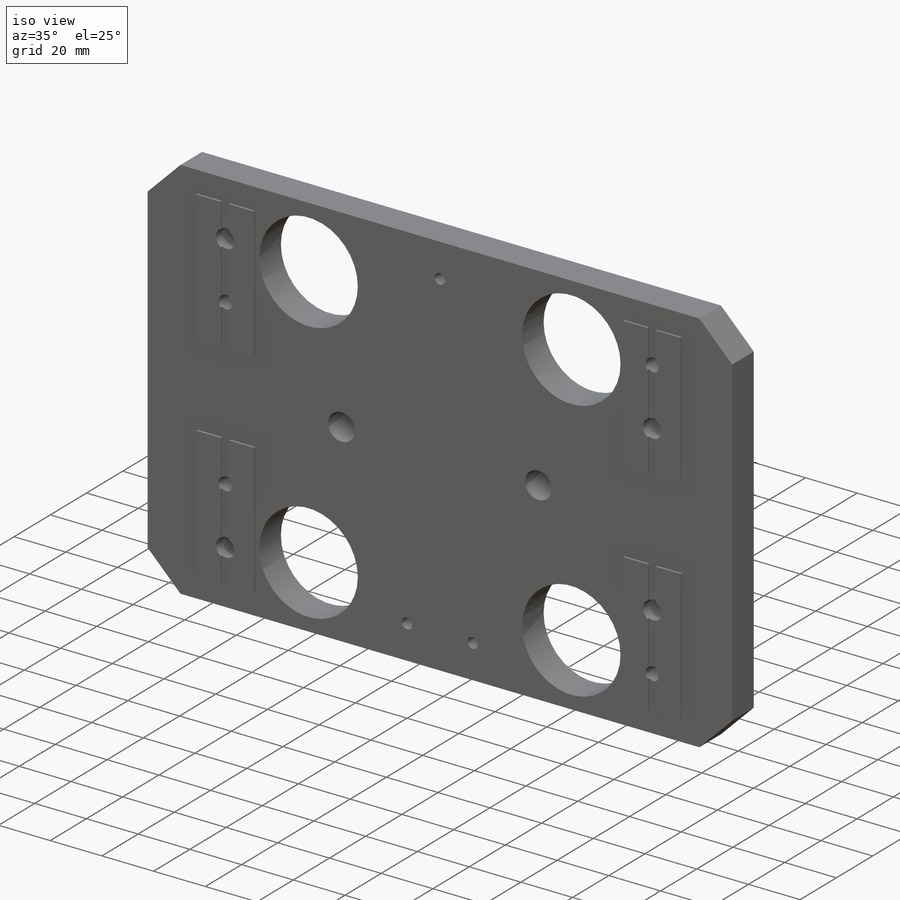
[diagram: iso view]
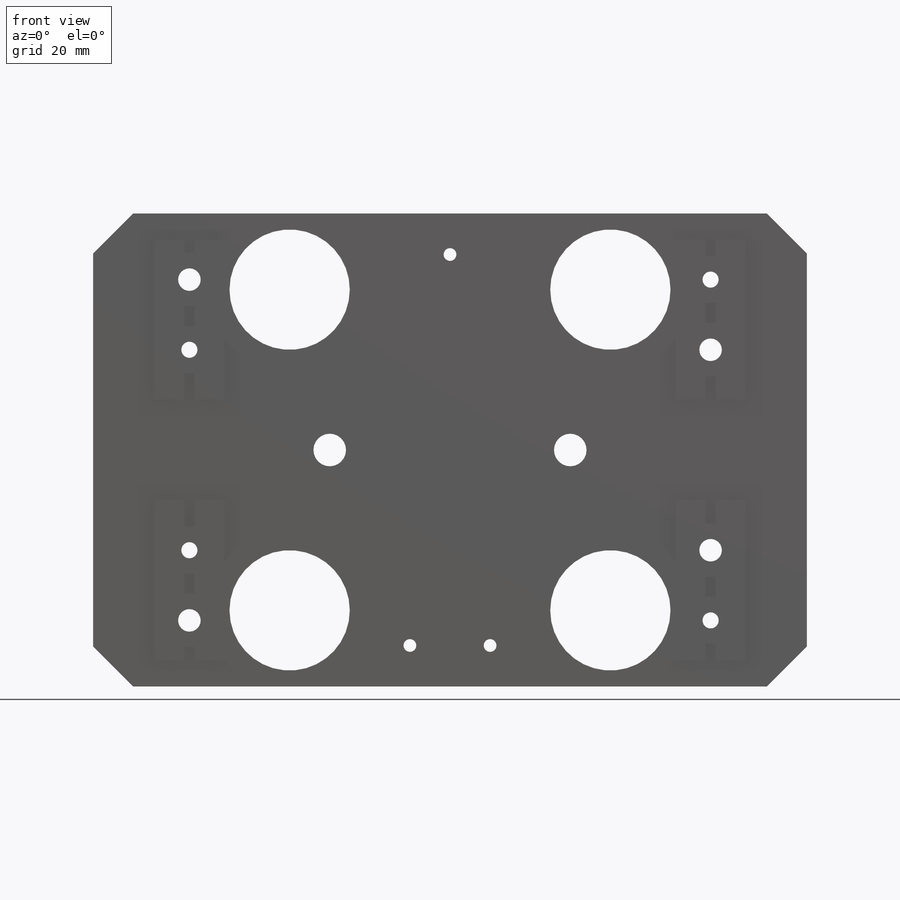
[diagram: front view]
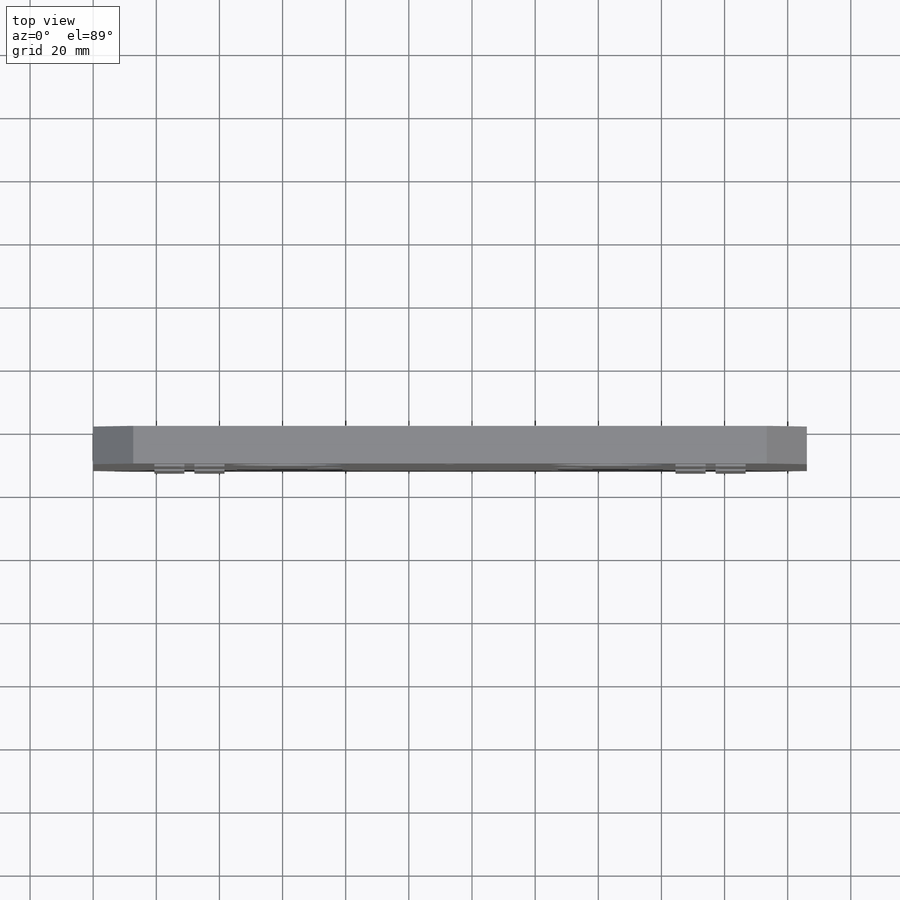
[diagram: top view]
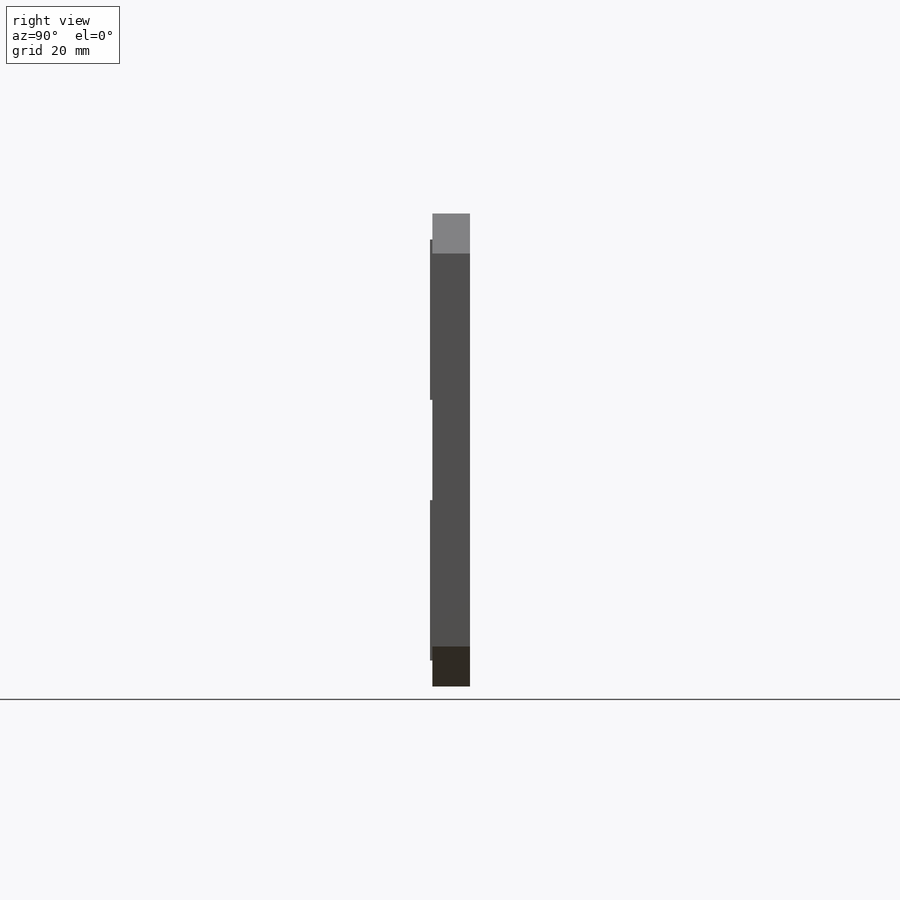
[diagram: right view]
SOLIDWORKS PART (.sldprt)
format: sldprt  version: not decoded by parser v0  size: 589,824 bytes
history: native  units: mm
features: sketch x13, thread x7, hole x5, cut_extrude x2, material x1, extrude x1, chamfer x1 + 1 further entry (+13 scaffold rows collapsed)
feature tree (44):
  scaffold x13  (default folders/planes/origin — collapsed)
  material  "6061-T6 Al"
  "Origin"  ID=-1
  sketch  "Sketch3"  dims[D1=226.06mm D2=149.86mm]
  extrude  "Extrude2"  Depth=12.7mm
  sketch  "Sketch4"  dims[c1.D1=25.4mm c1.D2=25.4mm c1.D3=82.55mm c1.D4=82.55mm c1.D5=41.275mm c2.D3=165.1mm c2.D1=15.875mm c2.D2=15.875mm c3.D3=50.8mm c3.D4=50.8mm c3.D5=71.4248mm c3.D6=71.4248mm c3.D7=25.4mm c3.D8=22.225mm c4.D7=22.225mm]
  cut_extrude  "Extrude4"  Depth=0.762mm
  hole  "CBORE for 1/4 Socket Head Cap Screw1"  Diameter=7.14248mm Depth=12.7mm
  sketch  "3DSketch4"  dims[c1.D1=~35.689261mm c1.D2=31.75mm c2.D1=82.55mm c2.D2=63.5mm c2.D3=~34.534054mm c2.D4=38.1mm c3.D3=107.95mm c3.D4=82.55mm]
  sketch  "Sketch9"  dims[hole-wizard template sketch: 44 standard entries collapsed; hole parameters kept: c12.C'Bore Depth=9.017mm c12.Near C'Sink Dia.=12.3825mm c12.D6=~4.399409mm c12.Near C'Sink Angle=90.0deg]
  hole  "1 (1) Diameter Hole1"  Diameter=38.1mm Depth=12.7mm
  sketch  "3DSketch6"  dims[D1=101.6mm D2=101.6mm]
  sketch  "Sketch14"  dims[hole-wizard template sketch: 59 standard entries collapsed; hole parameters kept: c18.Thru Hole Dia.=38.1mm c18.Thru Hole Depth=12.7mm]
  hole  "#10-32 Tapped Hole1"  Diameter=4.0386mm Depth=12.7mm
  sketch  "Sketch18"  dims[c1.D1=63.5mm c1.D2=63.5mm c2.D1=61.9252mm c2.D2=12.7mm c2.D3=12.7mm c2.D4=61.9252mm c3.D2=12.7mm c3.D3=12.7mm c4.D2=25.4mm]
  sketch  "Sketch17"  dims[hole-wizard template sketch: 60 standard entries collapsed; hole parameters kept: c18.Thru Tap Drill Depth=12.7mm]
  thread  "Hole Thread1"  Diameter=4.826mm  [1 undecoded]
  thread  "Hole Thread2"  Diameter=4.826mm  [1 undecoded]
  thread  "Hole Thread7"  Diameter=4.826mm  [1 undecoded]
  sketch  "Sketch19"  dims[D1=3.175mm]
  cut_extrude  "Cut-Extrude1"  [1 undecoded]
  hole  "1/4-20 Tapped Hole1"  Diameter=5.1054mm Depth=12.7mm
  sketch  "Sketch21"
  sketch  "Sketch20"  dims[hole-wizard template sketch: 60 standard entries collapsed; hole parameters kept: c18.Thru Tap Drill Depth=12.7mm]
  thread  "Hole Thread3"  Diameter=11.1252mm  [1 undecoded]
  thread  "Hole Thread4"  Diameter=11.1252mm  [1 undecoded]
  thread  "Hole Thread5"  Diameter=11.1252mm  [1 undecoded]
  thread  "Hole Thread6"  Diameter=11.1252mm  [1 undecoded]
  chamfer  "Chamfer1"  Distance=12.7mm Angle=45deg
  hole  "13/32 (0.40625) Diameter Hole1"  Diameter=10.31875mm Depth=12.7mm
  sketch  "Sketch24"  dims[D1=38.1mm]
  sketch  "Sketch23"  dims[hole-wizard template sketch: 60 standard entries collapsed; hole parameters kept: c18.Thru Hole Depth=12.7mm]
decode coverage: 27 of 29 modeling features carry decoded parameters; 1 rows unclassified (native names shown)
note: ~ marks probable driven/reference dimensions
note: 8 parameter values undecoded
summary: Diameter pulled from absorbed wizard sketch
note: suppression state not decoded; provenance and decode notes live in map.json
